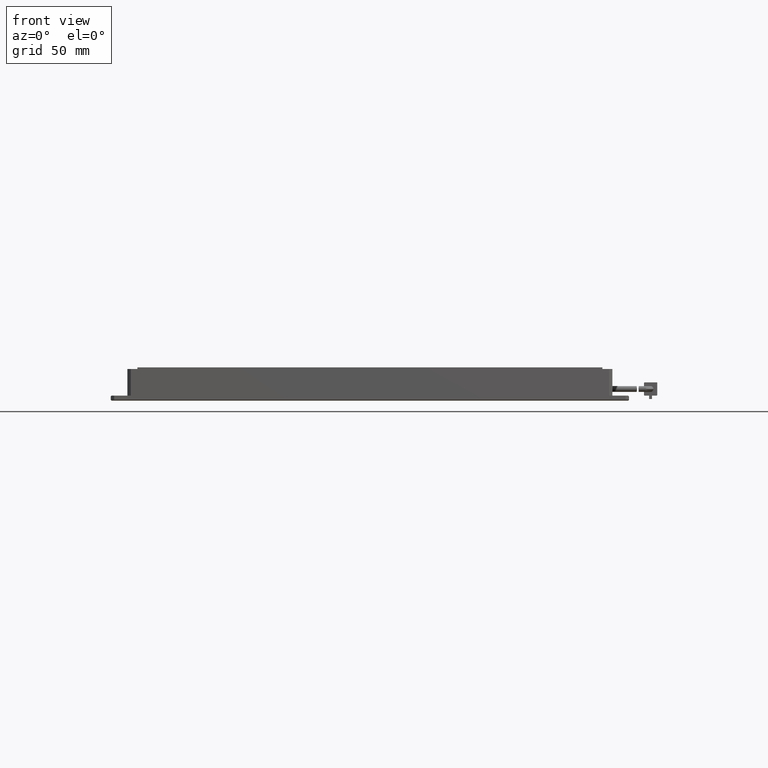
[diagram: clean part render]
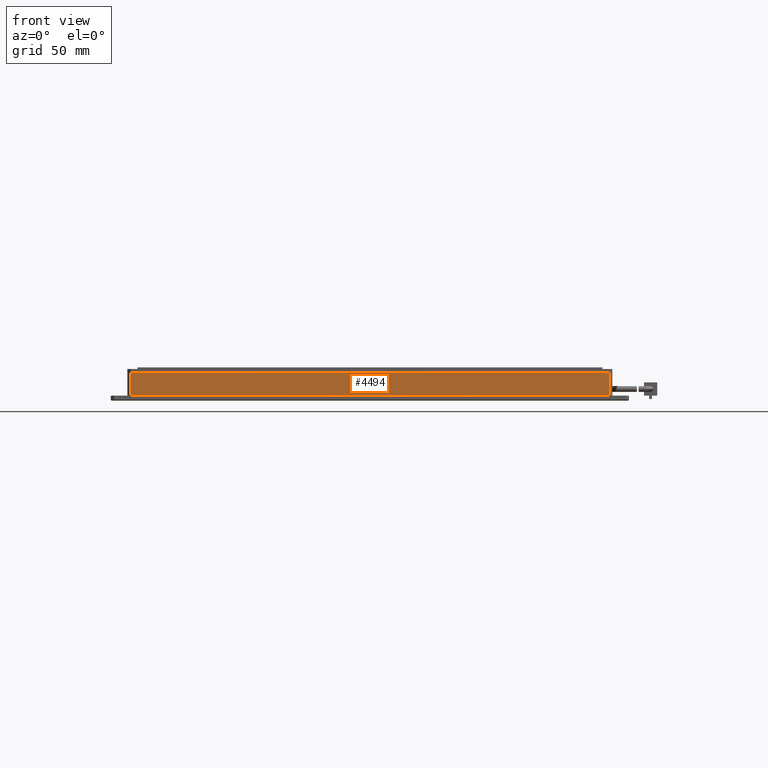
[diagram: same view with one face highlighted and labeled with its STEP entity id]
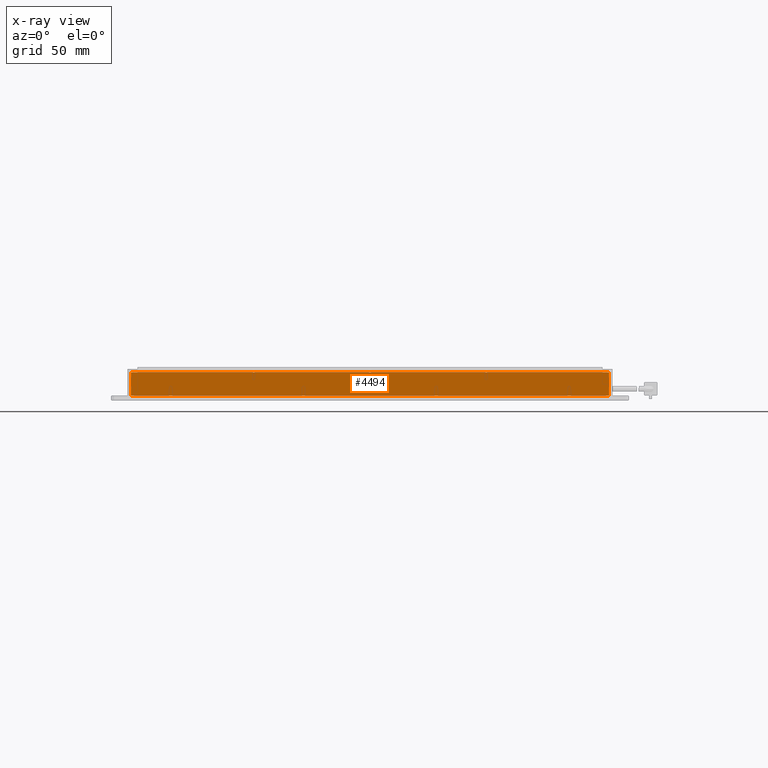
[diagram: x-ray of the same camera — body ghosted, the highlighted face saturated]
A machine part, front view. The second image highlights one B-rep face of the part: STEP entity #4494.
The next image is the same camera in x-ray: the body ghosted, the highlighted face saturated — about 0% of this face is hidden behind the body in this view.
In plain terms, the highlighted planar face has unit normal (0, 1, -0).
Its self-contained STEP definition (entity closure, byte-faithful):
#1012 = CARTESIAN_POINT ( 'NONE',  ( -113.0806771263418400, -132.7301954307733600, -7.000000000028194300 ) ) ;
#1172 = CARTESIAN_POINT ( 'NONE',  ( -113.0806771263418400, -132.7301954307733600, 6.999999999971805700 ) ) ;
#1786 = LINE ( 'NONE', #1012, #4398 ) ;
#3284 = DIRECTION ( 'NONE',  ( -1.000000000000000000, 9.505334114941411000E-017, 0.0000000000000000000 ) ) ;
#4398 = VECTOR ( 'NONE', #22822, 1000.000000000000000 ) ;
#4494 = ADVANCED_FACE ( 'NONE', ( #14828 ), #15178, .F. ) ;
#4621 = CARTESIAN_POINT ( 'NONE',  ( 176.9193228736580200, -132.7301954307733900, -7.000000000028197000 ) ) ;
#4654 = DIRECTION ( 'NONE',  ( 0.0000000000000000000, 0.0000000000000000000, 1.000000000000000000 ) ) ;
#4913 = DIRECTION ( 'NONE',  ( 9.505334114941411000E-017, 1.000000000000000000, -0.0000000000000000000 ) ) ;
#5137 = VERTEX_POINT ( 'NONE', #17468 ) ;
#5293 = ORIENTED_EDGE ( 'NONE', *, *, #10451, .F. ) ;
#6432 = DIRECTION ( 'NONE',  ( 1.000000000000000000, 0.0000000000000000000, -0.0000000000000000000 ) ) ;
#6496 = CARTESIAN_POINT ( 'NONE',  ( -111.0806771263418400, -132.7301954307733600, 6.999999999971805700 ) ) ;
#7990 = EDGE_CURVE ( 'NONE', #22711, #5137, #1786, .T. ) ;
#8855 = ORIENTED_EDGE ( 'NONE', *, *, #7990, .F. ) ;
#9310 = LINE ( 'NONE', #19871, #18791 ) ;
#9631 = VECTOR ( 'NONE', #4654, 1000.000000000000000 ) ;
#9936 = LINE ( 'NONE', #15651, #21709 ) ;
#10451 = EDGE_CURVE ( 'NONE', #15376, #21365, #9936, .T. ) ;
#14085 = CARTESIAN_POINT ( 'NONE',  ( 176.9193228736579600, -132.7301954307733900, 6.999999999971805700 ) ) ;
#14161 = AXIS2_PLACEMENT_3D ( 'NONE', #1172, #4913, #3284 ) ;
#14828 = FACE_OUTER_BOUND ( 'NONE', #18198, .T. ) ;
#15178 = PLANE ( 'NONE',  #14161 ) ;
#15376 = VERTEX_POINT ( 'NONE', #18885 ) ;
#15651 = CARTESIAN_POINT ( 'NONE',  ( -113.0806771263418400, -132.7301954307733600, 6.999999999971805700 ) ) ;
#16049 = DIRECTION ( 'NONE',  ( 0.0000000000000000000, 0.0000000000000000000, 1.000000000000000000 ) ) ;
#17468 = CARTESIAN_POINT ( 'NONE',  ( -111.0806771263418400, -132.7301954307733600, -7.000000000028197900 ) ) ;
#18198 = EDGE_LOOP ( 'NONE', ( #20779, #5293, #19276, #8855 ) ) ;
#18791 = VECTOR ( 'NONE', #16049, 1000.000000000000000 ) ;
#18821 = LINE ( 'NONE', #6496, #9631 ) ;
#18885 = CARTESIAN_POINT ( 'NONE',  ( -111.0806771263418400, -132.7301954307733600, 6.999999999971805700 ) ) ;
#19276 = ORIENTED_EDGE ( 'NONE', *, *, #23862, .F. ) ;
#19871 = CARTESIAN_POINT ( 'NONE',  ( 176.9193228736580700, -132.7301954307733900, 6.999999999971805700 ) ) ;
#20370 = EDGE_CURVE ( 'NONE', #22711, #21365, #9310, .T. ) ;
#20779 = ORIENTED_EDGE ( 'NONE', *, *, #20370, .T. ) ;
#21365 = VERTEX_POINT ( 'NONE', #14085 ) ;
#21709 = VECTOR ( 'NONE', #6432, 1000.000000000000000 ) ;
#22711 = VERTEX_POINT ( 'NONE', #4621 ) ;
#22822 = DIRECTION ( 'NONE',  ( -1.000000000000000000, 9.505334114941411000E-017, 0.0000000000000000000 ) ) ;
#23862 = EDGE_CURVE ( 'NONE', #5137, #15376, #18821, .T. ) ;